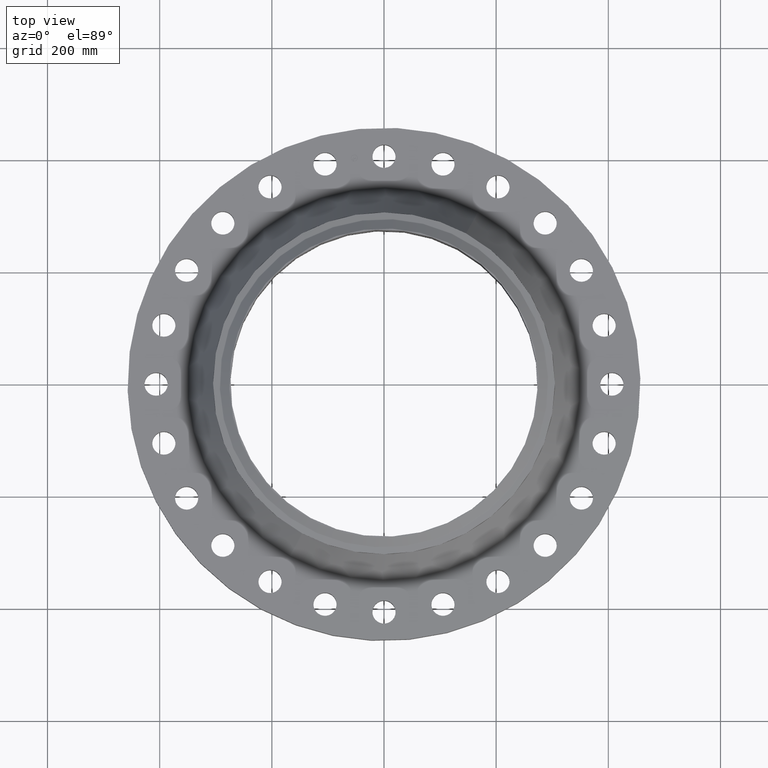
[diagram: clean part render]
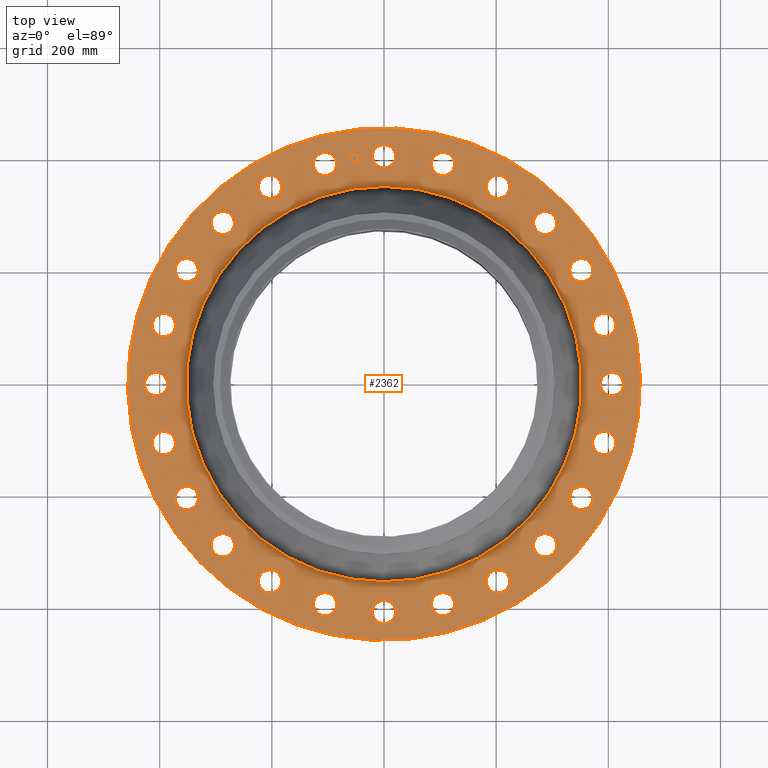
[diagram: same view with one face highlighted and labeled with its STEP entity id]
A machine part, top view. The second image highlights one B-rep face of the part: STEP entity #2362.
In plain terms, the highlighted planar face has unit normal (0, 0, -1).
Its self-contained STEP definition (entity closure, byte-faithful):
#65=AXIS2_PLACEMENT_3D('Circle Axis2P3D',#63,#64,$) ;
#90=AXIS2_PLACEMENT_3D('Circle Axis2P3D',#88,#89,$) ;
#130=AXIS2_PLACEMENT_3D('Circle Axis2P3D',#128,#129,$) ;
#154=AXIS2_PLACEMENT_3D('Circle Axis2P3D',#152,#153,$) ;
#171=AXIS2_PLACEMENT_3D('Circle Axis2P3D',#169,#170,$) ;
#206=AXIS2_PLACEMENT_3D('Circle Axis2P3D',#204,#205,$) ;
#1035=AXIS2_PLACEMENT_3D('Circle Axis2P3D',#1033,#1034,$) ;
#1047=AXIS2_PLACEMENT_3D('Circle Axis2P3D',#1045,#1046,$) ;
#1078=AXIS2_PLACEMENT_3D('Circle Axis2P3D',#1076,#1077,$) ;
#1090=AXIS2_PLACEMENT_3D('Circle Axis2P3D',#1088,#1089,$) ;
#1121=AXIS2_PLACEMENT_3D('Circle Axis2P3D',#1119,#1120,$) ;
#1133=AXIS2_PLACEMENT_3D('Circle Axis2P3D',#1131,#1132,$) ;
#1164=AXIS2_PLACEMENT_3D('Circle Axis2P3D',#1162,#1163,$) ;
#1176=AXIS2_PLACEMENT_3D('Circle Axis2P3D',#1174,#1175,$) ;
#1207=AXIS2_PLACEMENT_3D('Circle Axis2P3D',#1205,#1206,$) ;
#1219=AXIS2_PLACEMENT_3D('Circle Axis2P3D',#1217,#1218,$) ;
#1250=AXIS2_PLACEMENT_3D('Circle Axis2P3D',#1248,#1249,$) ;
#1262=AXIS2_PLACEMENT_3D('Circle Axis2P3D',#1260,#1261,$) ;
#1293=AXIS2_PLACEMENT_3D('Circle Axis2P3D',#1291,#1292,$) ;
#1305=AXIS2_PLACEMENT_3D('Circle Axis2P3D',#1303,#1304,$) ;
#1336=AXIS2_PLACEMENT_3D('Circle Axis2P3D',#1334,#1335,$) ;
#1348=AXIS2_PLACEMENT_3D('Circle Axis2P3D',#1346,#1347,$) ;
#1379=AXIS2_PLACEMENT_3D('Circle Axis2P3D',#1377,#1378,$) ;
#1391=AXIS2_PLACEMENT_3D('Circle Axis2P3D',#1389,#1390,$) ;
#1422=AXIS2_PLACEMENT_3D('Circle Axis2P3D',#1420,#1421,$) ;
#1434=AXIS2_PLACEMENT_3D('Circle Axis2P3D',#1432,#1433,$) ;
#1465=AXIS2_PLACEMENT_3D('Circle Axis2P3D',#1463,#1464,$) ;
#1477=AXIS2_PLACEMENT_3D('Circle Axis2P3D',#1475,#1476,$) ;
#1508=AXIS2_PLACEMENT_3D('Circle Axis2P3D',#1506,#1507,$) ;
#1520=AXIS2_PLACEMENT_3D('Circle Axis2P3D',#1518,#1519,$) ;
#1551=AXIS2_PLACEMENT_3D('Circle Axis2P3D',#1549,#1550,$) ;
#1563=AXIS2_PLACEMENT_3D('Circle Axis2P3D',#1561,#1562,$) ;
#1594=AXIS2_PLACEMENT_3D('Circle Axis2P3D',#1592,#1593,$) ;
#1606=AXIS2_PLACEMENT_3D('Circle Axis2P3D',#1604,#1605,$) ;
#1637=AXIS2_PLACEMENT_3D('Circle Axis2P3D',#1635,#1636,$) ;
#1649=AXIS2_PLACEMENT_3D('Circle Axis2P3D',#1647,#1648,$) ;
#1680=AXIS2_PLACEMENT_3D('Circle Axis2P3D',#1678,#1679,$) ;
#1692=AXIS2_PLACEMENT_3D('Circle Axis2P3D',#1690,#1691,$) ;
#1723=AXIS2_PLACEMENT_3D('Circle Axis2P3D',#1721,#1722,$) ;
#1735=AXIS2_PLACEMENT_3D('Circle Axis2P3D',#1733,#1734,$) ;
#1766=AXIS2_PLACEMENT_3D('Circle Axis2P3D',#1764,#1765,$) ;
#1778=AXIS2_PLACEMENT_3D('Circle Axis2P3D',#1776,#1777,$) ;
#1809=AXIS2_PLACEMENT_3D('Circle Axis2P3D',#1807,#1808,$) ;
#1821=AXIS2_PLACEMENT_3D('Circle Axis2P3D',#1819,#1820,$) ;
#1852=AXIS2_PLACEMENT_3D('Circle Axis2P3D',#1850,#1851,$) ;
#1864=AXIS2_PLACEMENT_3D('Circle Axis2P3D',#1862,#1863,$) ;
#1895=AXIS2_PLACEMENT_3D('Circle Axis2P3D',#1893,#1894,$) ;
#1907=AXIS2_PLACEMENT_3D('Circle Axis2P3D',#1905,#1906,$) ;
#1938=AXIS2_PLACEMENT_3D('Circle Axis2P3D',#1936,#1937,$) ;
#1950=AXIS2_PLACEMENT_3D('Circle Axis2P3D',#1948,#1949,$) ;
#1981=AXIS2_PLACEMENT_3D('Circle Axis2P3D',#1979,#1980,$) ;
#1993=AXIS2_PLACEMENT_3D('Circle Axis2P3D',#1991,#1992,$) ;
#2238=AXIS2_PLACEMENT_3D('Plane Axis2P3D',#2235,#2236,#2237) ;
#2346=AXIS2_PLACEMENT_3D('Circle Axis2P3D',#2344,#2345,$) ;
#2355=AXIS2_PLACEMENT_3D('Circle Axis2P3D',#2353,#2354,$) ;
#46=CARTESIAN_POINT('Vertex',(-0.715229787944,16.390731814,2.69000000001)) ;
#60=CARTESIAN_POINT('Vertex',(0.715229787944,15.6092681861,2.69000000001)) ;
#63=CARTESIAN_POINT('Axis2P3D Location',(0.,16.0000000001,2.69000000001)) ;
#88=CARTESIAN_POINT('Axis2P3D Location',(0.,16.0000000001,2.69000000001)) ;
#125=CARTESIAN_POINT('Vertex',(-8.62965969491,-15.7964861141,2.69000000001)) ;
#128=CARTESIAN_POINT('Axis2P3D Location',(0.,0.,2.69000000001)) ;
#132=CARTESIAN_POINT('Vertex',(8.62965969491,15.7964861141,2.69000000001)) ;
#152=CARTESIAN_POINT('Axis2P3D Location',(0.,0.,2.69000000001)) ;
#169=CARTESIAN_POINT('Axis2P3D Location',(0.,0.,2.69000000001)) ;
#173=CARTESIAN_POINT('Vertex',(6.65355365657,12.1792482741,2.69000000001)) ;
#175=CARTESIAN_POINT('Vertex',(-6.65355365657,-12.1792482741,2.69000000001)) ;
#204=CARTESIAN_POINT('Axis2P3D Location',(0.,0.,2.69000000001)) ;
#1023=CARTESIAN_POINT('Vertex',(-3.55137463273,-16.0173462617,2.69000000001)) ;
#1030=CARTESIAN_POINT('Vertex',(-4.73083481058,-14.8922801797,2.69000000001)) ;
#1033=CARTESIAN_POINT('Axis2P3D Location',(-4.14110472166,-15.4548132207,2.69000000001)) ;
#1045=CARTESIAN_POINT('Axis2P3D Location',(-4.14110472166,-15.4548132207,2.69000000001)) ;
#1066=CARTESIAN_POINT('Vertex',(7.57595874111,14.5524050315,2.69000000001)) ;
#1073=CARTESIAN_POINT('Vertex',(8.42404125895,13.1604078897,2.69000000001)) ;
#1076=CARTESIAN_POINT('Axis2P3D Location',(8.00000000003,13.8564064606,2.69000000001)) ;
#1088=CARTESIAN_POINT('Axis2P3D Location',(8.00000000003,13.8564064606,2.69000000001)) ;
#1109=CARTESIAN_POINT('Vertex',(-7.57595874111,-14.5524050315,2.69000000001)) ;
#1116=CARTESIAN_POINT('Vertex',(-8.42404125895,-13.1604078897,2.69000000001)) ;
#1119=CARTESIAN_POINT('Axis2P3D Location',(-8.00000000003,-13.8564064606,2.69000000001)) ;
#1131=CARTESIAN_POINT('Axis2P3D Location',(-8.00000000003,-13.8564064606,2.69000000001)) ;
#1152=CARTESIAN_POINT('Vertex',(11.0842537811,12.0957414475,2.69000000001)) ;
#1159=CARTESIAN_POINT('Vertex',(11.5431632169,10.5316755506,2.69000000001)) ;
#1162=CARTESIAN_POINT('Axis2P3D Location',(11.313708499,11.313708499,2.69000000001)) ;
#1174=CARTESIAN_POINT('Axis2P3D Location',(11.313708499,11.313708499,2.69000000001)) ;
#1195=CARTESIAN_POINT('Vertex',(-11.0842537811,-12.0957414475,2.69000000001)) ;
#1202=CARTESIAN_POINT('Vertex',(-11.5431632169,-10.5316755506,2.69000000001)) ;
#1205=CARTESIAN_POINT('Axis2P3D Location',(-11.313708499,-11.313708499,2.69000000001)) ;
#1217=CARTESIAN_POINT('Axis2P3D Location',(-11.313708499,-11.313708499,2.69000000001)) ;
#1238=CARTESIAN_POINT('Vertex',(13.8371752436,8.81477307292,2.69000000001)) ;
#1245=CARTESIAN_POINT('Vertex',(13.8756376776,7.18522692715,2.69000000001)) ;
#1248=CARTESIAN_POINT('Axis2P3D Location',(13.8564064606,8.00000000003,2.69000000001)) ;
#1260=CARTESIAN_POINT('Axis2P3D Location',(13.8564064606,8.00000000003,2.69000000001)) ;
#1281=CARTESIAN_POINT('Vertex',(-13.8371752436,-8.81477307292,2.69000000001)) ;
#1288=CARTESIAN_POINT('Vertex',(-13.8756376776,-7.18522692715,2.69000000001)) ;
#1291=CARTESIAN_POINT('Axis2P3D Location',(-13.8564064606,-8.00000000003,2.69000000001)) ;
#1303=CARTESIAN_POINT('Axis2P3D Location',(-13.8564064606,-8.00000000003,2.69000000001)) ;
#1324=CARTESIAN_POINT('Vertex',(15.6471160802,4.93309248054,2.69000000001)) ;
#1331=CARTESIAN_POINT('Vertex',(15.2625103612,3.34911696277,2.69000000001)) ;
#1334=CARTESIAN_POINT('Axis2P3D Location',(15.4548132207,4.14110472166,2.69000000001)) ;
#1346=CARTESIAN_POINT('Axis2P3D Location',(15.4548132207,4.14110472166,2.69000000001)) ;
#1367=CARTESIAN_POINT('Vertex',(-15.6471160802,-4.93309248054,2.69000000001)) ;
#1374=CARTESIAN_POINT('Vertex',(-15.2625103612,-3.34911696277,2.69000000001)) ;
#1377=CARTESIAN_POINT('Axis2P3D Location',(-15.4548132207,-4.14110472166,2.69000000001)) ;
#1389=CARTESIAN_POINT('Axis2P3D Location',(-15.4548132207,-4.14110472166,2.69000000001)) ;
#1410=CARTESIAN_POINT('Vertex',(16.390731814,0.715229787944,2.69000000001)) ;
#1417=CARTESIAN_POINT('Vertex',(15.6092681861,-0.715229787944,2.69000000001)) ;
#1420=CARTESIAN_POINT('Axis2P3D Location',(16.0000000001,9.79717439322E-016,2.69000000001)) ;
#1432=CARTESIAN_POINT('Axis2P3D Location',(16.0000000001,9.79717439322E-016,2.69000000001)) ;
#1453=CARTESIAN_POINT('Vertex',(-16.390731814,-0.715229787944,2.69000000001)) ;
#1460=CARTESIAN_POINT('Vertex',(-15.6092681861,0.715229787944,2.69000000001)) ;
#1463=CARTESIAN_POINT('Axis2P3D Location',(-16.0000000001,-7.01222441556E-016,2.69000000001)) ;
#1475=CARTESIAN_POINT('Axis2P3D Location',(-16.0000000001,-7.01222441556E-016,2.69000000001)) ;
#1496=CARTESIAN_POINT('Vertex',(16.0173462617,-3.55137463273,2.69000000001)) ;
#1503=CARTESIAN_POINT('Vertex',(14.8922801797,-4.73083481058,2.69000000001)) ;
#1506=CARTESIAN_POINT('Axis2P3D Location',(15.4548132207,-4.14110472166,2.69000000001)) ;
#1518=CARTESIAN_POINT('Axis2P3D Location',(15.4548132207,-4.14110472166,2.69000000001)) ;
#1539=CARTESIAN_POINT('Vertex',(-16.0173462617,3.55137463273,2.69000000001)) ;
#1546=CARTESIAN_POINT('Vertex',(-14.8922801797,4.73083481058,2.69000000001)) ;
#1549=CARTESIAN_POINT('Axis2P3D Location',(-15.4548132207,4.14110472166,2.69000000001)) ;
#1561=CARTESIAN_POINT('Axis2P3D Location',(-15.4548132207,4.14110472166,2.69000000001)) ;
#1582=CARTESIAN_POINT('Vertex',(14.5524050315,-7.57595874111,2.69000000001)) ;
#1589=CARTESIAN_POINT('Vertex',(13.1604078897,-8.42404125895,2.69000000001)) ;
#1592=CARTESIAN_POINT('Axis2P3D Location',(13.8564064606,-8.00000000003,2.69000000001)) ;
#1604=CARTESIAN_POINT('Axis2P3D Location',(13.8564064606,-8.00000000003,2.69000000001)) ;
#1625=CARTESIAN_POINT('Vertex',(-14.5524050315,7.57595874111,2.69000000001)) ;
#1632=CARTESIAN_POINT('Vertex',(-13.1604078897,8.42404125895,2.69000000001)) ;
#1635=CARTESIAN_POINT('Axis2P3D Location',(-13.8564064606,8.00000000003,2.69000000001)) ;
#1647=CARTESIAN_POINT('Axis2P3D Location',(-13.8564064606,8.00000000003,2.69000000001)) ;
#1668=CARTESIAN_POINT('Vertex',(12.0957414475,-11.0842537811,2.69000000001)) ;
#1675=CARTESIAN_POINT('Vertex',(10.5316755506,-11.5431632169,2.69000000001)) ;
#1678=CARTESIAN_POINT('Axis2P3D Location',(11.313708499,-11.313708499,2.69000000001)) ;
#1690=CARTESIAN_POINT('Axis2P3D Location',(11.313708499,-11.313708499,2.69000000001)) ;
#1711=CARTESIAN_POINT('Vertex',(-12.0957414475,11.0842537811,2.69000000001)) ;
#1718=CARTESIAN_POINT('Vertex',(-10.5316755506,11.5431632169,2.69000000001)) ;
#1721=CARTESIAN_POINT('Axis2P3D Location',(-11.313708499,11.313708499,2.69000000001)) ;
#1733=CARTESIAN_POINT('Axis2P3D Location',(-11.313708499,11.313708499,2.69000000001)) ;
#1754=CARTESIAN_POINT('Vertex',(8.81477307292,-13.8371752436,2.69000000001)) ;
#1761=CARTESIAN_POINT('Vertex',(7.18522692715,-13.8756376776,2.69000000001)) ;
#1764=CARTESIAN_POINT('Axis2P3D Location',(8.00000000003,-13.8564064606,2.69000000001)) ;
#1776=CARTESIAN_POINT('Axis2P3D Location',(8.00000000003,-13.8564064606,2.69000000001)) ;
#1797=CARTESIAN_POINT('Vertex',(-8.81477307292,13.8371752436,2.69000000001)) ;
#1804=CARTESIAN_POINT('Vertex',(-7.18522692715,13.8756376776,2.69000000001)) ;
#1807=CARTESIAN_POINT('Axis2P3D Location',(-8.00000000003,13.8564064606,2.69000000001)) ;
#1819=CARTESIAN_POINT('Axis2P3D Location',(-8.00000000003,13.8564064606,2.69000000001)) ;
#1840=CARTESIAN_POINT('Vertex',(4.93309248054,-15.6471160802,2.69000000001)) ;
#1847=CARTESIAN_POINT('Vertex',(3.34911696277,-15.2625103612,2.69000000001)) ;
#1850=CARTESIAN_POINT('Axis2P3D Location',(4.14110472166,-15.4548132207,2.69000000001)) ;
#1862=CARTESIAN_POINT('Axis2P3D Location',(4.14110472166,-15.4548132207,2.69000000001)) ;
#1883=CARTESIAN_POINT('Vertex',(-4.93309248054,15.6471160802,2.69000000001)) ;
#1890=CARTESIAN_POINT('Vertex',(-3.34911696277,15.2625103612,2.69000000001)) ;
#1893=CARTESIAN_POINT('Axis2P3D Location',(-4.14110472166,15.4548132207,2.69000000001)) ;
#1905=CARTESIAN_POINT('Axis2P3D Location',(-4.14110472166,15.4548132207,2.69000000001)) ;
#1926=CARTESIAN_POINT('Vertex',(0.715229787944,-16.390731814,2.69000000001)) ;
#1933=CARTESIAN_POINT('Vertex',(-0.715229787944,-15.6092681861,2.69000000001)) ;
#1936=CARTESIAN_POINT('Axis2P3D Location',(1.95943487864E-015,-16.0000000001,2.69000000001)) ;
#1948=CARTESIAN_POINT('Axis2P3D Location',(1.95943487864E-015,-16.0000000001,2.69000000001)) ;
#1969=CARTESIAN_POINT('Vertex',(3.55137463273,16.0173462617,2.69000000001)) ;
#1976=CARTESIAN_POINT('Vertex',(4.73083481058,14.8922801797,2.69000000001)) ;
#1979=CARTESIAN_POINT('Axis2P3D Location',(4.14110472166,15.4548132207,2.69000000001)) ;
#1991=CARTESIAN_POINT('Axis2P3D Location',(4.14110472166,15.4548132207,2.69000000001)) ;
#2235=CARTESIAN_POINT('Axis2P3D Location',(0.,18.0000000001,2.69000000001)) ;
#2344=CARTESIAN_POINT('Axis2P3D Location',(-2.08841907553,15.863117782,2.69000000001)) ;
#2348=CARTESIAN_POINT('Vertex',(-2.33380167872,15.8308125495,2.69000000001)) ;
#2350=CARTESIAN_POINT('Vertex',(-1.84303647234,15.8954230146,2.69000000001)) ;
#2353=CARTESIAN_POINT('Axis2P3D Location',(-2.08841907553,15.863117782,2.69000000001)) ;
#64=DIRECTION('Axis2P3D Direction',(0.,-0.,-0.0393700787402)) ;
#89=DIRECTION('Axis2P3D Direction',(0.,-0.,-0.0393700787402)) ;
#129=DIRECTION('Axis2P3D Direction',(0.,0.,-0.0393700787402)) ;
#153=DIRECTION('Axis2P3D Direction',(0.,0.,-0.0393700787402)) ;
#170=DIRECTION('Axis2P3D Direction',(0.,0.,-0.0393700787402)) ;
#205=DIRECTION('Axis2P3D Direction',(0.,0.,-0.0393700787402)) ;
#1034=DIRECTION('Axis2P3D Direction',(0.,0.,-0.0393700787402)) ;
#1046=DIRECTION('Axis2P3D Direction',(0.,0.,-0.0393700787402)) ;
#1077=DIRECTION('Axis2P3D Direction',(0.,-0.,-0.0393700787402)) ;
#1089=DIRECTION('Axis2P3D Direction',(0.,-0.,-0.0393700787402)) ;
#1120=DIRECTION('Axis2P3D Direction',(0.,0.,-0.0393700787402)) ;
#1132=DIRECTION('Axis2P3D Direction',(0.,0.,-0.0393700787402)) ;
#1163=DIRECTION('Axis2P3D Direction',(0.,-0.,-0.0393700787402)) ;
#1175=DIRECTION('Axis2P3D Direction',(0.,-0.,-0.0393700787402)) ;
#1206=DIRECTION('Axis2P3D Direction',(0.,0.,-0.0393700787402)) ;
#1218=DIRECTION('Axis2P3D Direction',(0.,0.,-0.0393700787402)) ;
#1249=DIRECTION('Axis2P3D Direction',(0.,-0.,-0.0393700787402)) ;
#1261=DIRECTION('Axis2P3D Direction',(0.,-0.,-0.0393700787402)) ;
#1292=DIRECTION('Axis2P3D Direction',(0.,0.,-0.0393700787402)) ;
#1304=DIRECTION('Axis2P3D Direction',(0.,0.,-0.0393700787402)) ;
#1335=DIRECTION('Axis2P3D Direction',(0.,-0.,-0.0393700787402)) ;
#1347=DIRECTION('Axis2P3D Direction',(0.,-0.,-0.0393700787402)) ;
#1378=DIRECTION('Axis2P3D Direction',(0.,0.,-0.0393700787402)) ;
#1390=DIRECTION('Axis2P3D Direction',(0.,0.,-0.0393700787402)) ;
#1421=DIRECTION('Axis2P3D Direction',(0.,-0.,-0.0393700787402)) ;
#1433=DIRECTION('Axis2P3D Direction',(0.,-0.,-0.0393700787402)) ;
#1464=DIRECTION('Axis2P3D Direction',(0.,0.,-0.0393700787402)) ;
#1476=DIRECTION('Axis2P3D Direction',(0.,0.,-0.0393700787402)) ;
#1507=DIRECTION('Axis2P3D Direction',(-0.,0.,-0.0393700787402)) ;
#1519=DIRECTION('Axis2P3D Direction',(-0.,0.,-0.0393700787402)) ;
#1550=DIRECTION('Axis2P3D Direction',(0.,0.,-0.0393700787402)) ;
#1562=DIRECTION('Axis2P3D Direction',(0.,0.,-0.0393700787402)) ;
#1593=DIRECTION('Axis2P3D Direction',(-0.,0.,-0.0393700787402)) ;
#1605=DIRECTION('Axis2P3D Direction',(-0.,0.,-0.0393700787402)) ;
#1636=DIRECTION('Axis2P3D Direction',(0.,0.,-0.0393700787402)) ;
#1648=DIRECTION('Axis2P3D Direction',(0.,0.,-0.0393700787402)) ;
#1679=DIRECTION('Axis2P3D Direction',(-0.,0.,-0.0393700787402)) ;
#1691=DIRECTION('Axis2P3D Direction',(-0.,0.,-0.0393700787402)) ;
#1722=DIRECTION('Axis2P3D Direction',(0.,0.,-0.0393700787402)) ;
#1734=DIRECTION('Axis2P3D Direction',(0.,0.,-0.0393700787402)) ;
#1765=DIRECTION('Axis2P3D Direction',(-0.,0.,-0.0393700787402)) ;
#1777=DIRECTION('Axis2P3D Direction',(-0.,0.,-0.0393700787402)) ;
#1808=DIRECTION('Axis2P3D Direction',(0.,0.,-0.0393700787402)) ;
#1820=DIRECTION('Axis2P3D Direction',(0.,0.,-0.0393700787402)) ;
#1851=DIRECTION('Axis2P3D Direction',(-0.,0.,-0.0393700787402)) ;
#1863=DIRECTION('Axis2P3D Direction',(-0.,0.,-0.0393700787402)) ;
#1894=DIRECTION('Axis2P3D Direction',(0.,0.,-0.0393700787402)) ;
#1906=DIRECTION('Axis2P3D Direction',(0.,0.,-0.0393700787402)) ;
#1937=DIRECTION('Axis2P3D Direction',(-0.,0.,-0.0393700787402)) ;
#1949=DIRECTION('Axis2P3D Direction',(-0.,0.,-0.0393700787402)) ;
#1980=DIRECTION('Axis2P3D Direction',(0.,-0.,-0.0393700787402)) ;
#1992=DIRECTION('Axis2P3D Direction',(0.,-0.,-0.0393700787402)) ;
#2236=DIRECTION('Axis2P3D Direction',(0.,0.,-0.0393700787402)) ;
#2237=DIRECTION('Axis2P3D XDirection',(0.0393700787402,0.,0.)) ;
#2345=DIRECTION('Axis2P3D Direction',(0.,0.,-0.0393700787402)) ;
#2354=DIRECTION('Axis2P3D Direction',(0.,0.,-0.0393700787402)) ;
#2241=ORIENTED_EDGE('',*,*,#156,.F.) ;
#2242=ORIENTED_EDGE('',*,*,#134,.F.) ;
#2245=ORIENTED_EDGE('',*,*,#67,.T.) ;
#2246=ORIENTED_EDGE('',*,*,#92,.T.) ;
#2249=ORIENTED_EDGE('',*,*,#208,.T.) ;
#2250=ORIENTED_EDGE('',*,*,#177,.T.) ;
#2253=ORIENTED_EDGE('',*,*,#1995,.T.) ;
#2254=ORIENTED_EDGE('',*,*,#1983,.T.) ;
#2257=ORIENTED_EDGE('',*,*,#1092,.T.) ;
#2258=ORIENTED_EDGE('',*,*,#1080,.T.) ;
#2261=ORIENTED_EDGE('',*,*,#1178,.T.) ;
#2262=ORIENTED_EDGE('',*,*,#1166,.T.) ;
#2265=ORIENTED_EDGE('',*,*,#1264,.T.) ;
#2266=ORIENTED_EDGE('',*,*,#1252,.T.) ;
#2269=ORIENTED_EDGE('',*,*,#1350,.T.) ;
#2270=ORIENTED_EDGE('',*,*,#1338,.T.) ;
#2273=ORIENTED_EDGE('',*,*,#1436,.T.) ;
#2274=ORIENTED_EDGE('',*,*,#1424,.T.) ;
#2277=ORIENTED_EDGE('',*,*,#1522,.T.) ;
#2278=ORIENTED_EDGE('',*,*,#1510,.T.) ;
#2281=ORIENTED_EDGE('',*,*,#1608,.T.) ;
#2282=ORIENTED_EDGE('',*,*,#1596,.T.) ;
#2285=ORIENTED_EDGE('',*,*,#1694,.T.) ;
#2286=ORIENTED_EDGE('',*,*,#1682,.T.) ;
#2289=ORIENTED_EDGE('',*,*,#1780,.T.) ;
#2290=ORIENTED_EDGE('',*,*,#1768,.T.) ;
#2293=ORIENTED_EDGE('',*,*,#1866,.T.) ;
#2294=ORIENTED_EDGE('',*,*,#1854,.T.) ;
#2297=ORIENTED_EDGE('',*,*,#1952,.T.) ;
#2298=ORIENTED_EDGE('',*,*,#1940,.T.) ;
#2301=ORIENTED_EDGE('',*,*,#1049,.T.) ;
#2302=ORIENTED_EDGE('',*,*,#1037,.T.) ;
#2305=ORIENTED_EDGE('',*,*,#1135,.T.) ;
#2306=ORIENTED_EDGE('',*,*,#1123,.T.) ;
#2309=ORIENTED_EDGE('',*,*,#1221,.T.) ;
#2310=ORIENTED_EDGE('',*,*,#1209,.T.) ;
#2313=ORIENTED_EDGE('',*,*,#1307,.T.) ;
#2314=ORIENTED_EDGE('',*,*,#1295,.T.) ;
#2317=ORIENTED_EDGE('',*,*,#1393,.T.) ;
#2318=ORIENTED_EDGE('',*,*,#1381,.T.) ;
#2321=ORIENTED_EDGE('',*,*,#1479,.T.) ;
#2322=ORIENTED_EDGE('',*,*,#1467,.T.) ;
#2325=ORIENTED_EDGE('',*,*,#1565,.T.) ;
#2326=ORIENTED_EDGE('',*,*,#1553,.T.) ;
#2329=ORIENTED_EDGE('',*,*,#1651,.T.) ;
#2330=ORIENTED_EDGE('',*,*,#1639,.T.) ;
#2333=ORIENTED_EDGE('',*,*,#1737,.T.) ;
#2334=ORIENTED_EDGE('',*,*,#1725,.T.) ;
#2337=ORIENTED_EDGE('',*,*,#1823,.T.) ;
#2338=ORIENTED_EDGE('',*,*,#1811,.T.) ;
#2341=ORIENTED_EDGE('',*,*,#1909,.T.) ;
#2342=ORIENTED_EDGE('',*,*,#1897,.T.) ;
#2359=ORIENTED_EDGE('',*,*,#2352,.T.) ;
#2360=ORIENTED_EDGE('',*,*,#2357,.T.) ;
#2247=FACE_BOUND('',#2244,.T.) ;
#2251=FACE_BOUND('',#2248,.T.) ;
#2255=FACE_BOUND('',#2252,.T.) ;
#2259=FACE_BOUND('',#2256,.T.) ;
#2263=FACE_BOUND('',#2260,.T.) ;
#2267=FACE_BOUND('',#2264,.T.) ;
#2271=FACE_BOUND('',#2268,.T.) ;
#2275=FACE_BOUND('',#2272,.T.) ;
#2279=FACE_BOUND('',#2276,.T.) ;
#2283=FACE_BOUND('',#2280,.T.) ;
#2287=FACE_BOUND('',#2284,.T.) ;
#2291=FACE_BOUND('',#2288,.T.) ;
#2295=FACE_BOUND('',#2292,.T.) ;
#2299=FACE_BOUND('',#2296,.T.) ;
#2303=FACE_BOUND('',#2300,.T.) ;
#2307=FACE_BOUND('',#2304,.T.) ;
#2311=FACE_BOUND('',#2308,.T.) ;
#2315=FACE_BOUND('',#2312,.T.) ;
#2319=FACE_BOUND('',#2316,.T.) ;
#2323=FACE_BOUND('',#2320,.T.) ;
#2327=FACE_BOUND('',#2324,.T.) ;
#2331=FACE_BOUND('',#2328,.T.) ;
#2335=FACE_BOUND('',#2332,.T.) ;
#2339=FACE_BOUND('',#2336,.T.) ;
#2343=FACE_BOUND('',#2340,.T.) ;
#2361=FACE_BOUND('',#2358,.T.) ;
#2362=ADVANCED_FACE('PartBody',(#2243,#2247,#2251,#2255,#2259,#2263,#2267,#2271,#2275,#2279,#2283,#2287,#2291,#2295,#2299,#2303,#2307,#2311,#2315,#2319,#2323,#2327,#2331,#2335,#2339,#2343,#2361),#2239,.F.) ;
#66=CIRCLE('generated circle',#65,0.815000000003) ;
#91=CIRCLE('generated circle',#90,0.815000000003) ;
#131=CIRCLE('generated circle',#130,18.0000000001) ;
#155=CIRCLE('generated circle',#154,18.0000000001) ;
#172=CIRCLE('generated circle',#171,13.8781794477) ;
#207=CIRCLE('generated circle',#206,13.8781794477) ;
#1036=CIRCLE('generated circle',#1035,0.815000000003) ;
#1048=CIRCLE('generated circle',#1047,0.815000000003) ;
#1079=CIRCLE('generated circle',#1078,0.815000000003) ;
#1091=CIRCLE('generated circle',#1090,0.815000000003) ;
#1122=CIRCLE('generated circle',#1121,0.815000000003) ;
#1134=CIRCLE('generated circle',#1133,0.815000000003) ;
#1165=CIRCLE('generated circle',#1164,0.815000000003) ;
#1177=CIRCLE('generated circle',#1176,0.815000000003) ;
#1208=CIRCLE('generated circle',#1207,0.815000000003) ;
#1220=CIRCLE('generated circle',#1219,0.815000000003) ;
#1251=CIRCLE('generated circle',#1250,0.815000000003) ;
#1263=CIRCLE('generated circle',#1262,0.815000000003) ;
#1294=CIRCLE('generated circle',#1293,0.815000000003) ;
#1306=CIRCLE('generated circle',#1305,0.815000000003) ;
#1337=CIRCLE('generated circle',#1336,0.815000000003) ;
#1349=CIRCLE('generated circle',#1348,0.815000000003) ;
#1380=CIRCLE('generated circle',#1379,0.815000000003) ;
#1392=CIRCLE('generated circle',#1391,0.815000000003) ;
#1423=CIRCLE('generated circle',#1422,0.815000000003) ;
#1435=CIRCLE('generated circle',#1434,0.815000000003) ;
#1466=CIRCLE('generated circle',#1465,0.815000000003) ;
#1478=CIRCLE('generated circle',#1477,0.815000000003) ;
#1509=CIRCLE('generated circle',#1508,0.815000000003) ;
#1521=CIRCLE('generated circle',#1520,0.815000000003) ;
#1552=CIRCLE('generated circle',#1551,0.815000000003) ;
#1564=CIRCLE('generated circle',#1563,0.815000000003) ;
#1595=CIRCLE('generated circle',#1594,0.815000000003) ;
#1607=CIRCLE('generated circle',#1606,0.815000000003) ;
#1638=CIRCLE('generated circle',#1637,0.815000000003) ;
#1650=CIRCLE('generated circle',#1649,0.815000000003) ;
#1681=CIRCLE('generated circle',#1680,0.815000000003) ;
#1693=CIRCLE('generated circle',#1692,0.815000000003) ;
#1724=CIRCLE('generated circle',#1723,0.815000000003) ;
#1736=CIRCLE('generated circle',#1735,0.815000000003) ;
#1767=CIRCLE('generated circle',#1766,0.815000000003) ;
#1779=CIRCLE('generated circle',#1778,0.815000000003) ;
#1810=CIRCLE('generated circle',#1809,0.815000000003) ;
#1822=CIRCLE('generated circle',#1821,0.815000000003) ;
#1853=CIRCLE('generated circle',#1852,0.815000000003) ;
#1865=CIRCLE('generated circle',#1864,0.815000000003) ;
#1896=CIRCLE('generated circle',#1895,0.815000000003) ;
#1908=CIRCLE('generated circle',#1907,0.815000000003) ;
#1939=CIRCLE('generated circle',#1938,0.815000000003) ;
#1951=CIRCLE('generated circle',#1950,0.815000000003) ;
#1982=CIRCLE('generated circle',#1981,0.815000000003) ;
#1994=CIRCLE('generated circle',#1993,0.815000000003) ;
#2347=CIRCLE('generated circle',#2346,0.247500000001) ;
#2356=CIRCLE('generated circle',#2355,0.247500000001) ;
#67=EDGE_CURVE('',#47,#61,#66,.T.) ;
#92=EDGE_CURVE('',#61,#47,#91,.T.) ;
#134=EDGE_CURVE('',#126,#133,#131,.T.) ;
#156=EDGE_CURVE('',#133,#126,#155,.T.) ;
#177=EDGE_CURVE('',#174,#176,#172,.T.) ;
#208=EDGE_CURVE('',#176,#174,#207,.T.) ;
#1037=EDGE_CURVE('',#1024,#1031,#1036,.T.) ;
#1049=EDGE_CURVE('',#1031,#1024,#1048,.T.) ;
#1080=EDGE_CURVE('',#1067,#1074,#1079,.T.) ;
#1092=EDGE_CURVE('',#1074,#1067,#1091,.T.) ;
#1123=EDGE_CURVE('',#1110,#1117,#1122,.T.) ;
#1135=EDGE_CURVE('',#1117,#1110,#1134,.T.) ;
#1166=EDGE_CURVE('',#1153,#1160,#1165,.T.) ;
#1178=EDGE_CURVE('',#1160,#1153,#1177,.T.) ;
#1209=EDGE_CURVE('',#1196,#1203,#1208,.T.) ;
#1221=EDGE_CURVE('',#1203,#1196,#1220,.T.) ;
#1252=EDGE_CURVE('',#1239,#1246,#1251,.T.) ;
#1264=EDGE_CURVE('',#1246,#1239,#1263,.T.) ;
#1295=EDGE_CURVE('',#1282,#1289,#1294,.T.) ;
#1307=EDGE_CURVE('',#1289,#1282,#1306,.T.) ;
#1338=EDGE_CURVE('',#1325,#1332,#1337,.T.) ;
#1350=EDGE_CURVE('',#1332,#1325,#1349,.T.) ;
#1381=EDGE_CURVE('',#1368,#1375,#1380,.T.) ;
#1393=EDGE_CURVE('',#1375,#1368,#1392,.T.) ;
#1424=EDGE_CURVE('',#1411,#1418,#1423,.T.) ;
#1436=EDGE_CURVE('',#1418,#1411,#1435,.T.) ;
#1467=EDGE_CURVE('',#1454,#1461,#1466,.T.) ;
#1479=EDGE_CURVE('',#1461,#1454,#1478,.T.) ;
#1510=EDGE_CURVE('',#1497,#1504,#1509,.T.) ;
#1522=EDGE_CURVE('',#1504,#1497,#1521,.T.) ;
#1553=EDGE_CURVE('',#1540,#1547,#1552,.T.) ;
#1565=EDGE_CURVE('',#1547,#1540,#1564,.T.) ;
#1596=EDGE_CURVE('',#1583,#1590,#1595,.T.) ;
#1608=EDGE_CURVE('',#1590,#1583,#1607,.T.) ;
#1639=EDGE_CURVE('',#1626,#1633,#1638,.T.) ;
#1651=EDGE_CURVE('',#1633,#1626,#1650,.T.) ;
#1682=EDGE_CURVE('',#1669,#1676,#1681,.T.) ;
#1694=EDGE_CURVE('',#1676,#1669,#1693,.T.) ;
#1725=EDGE_CURVE('',#1712,#1719,#1724,.T.) ;
#1737=EDGE_CURVE('',#1719,#1712,#1736,.T.) ;
#1768=EDGE_CURVE('',#1755,#1762,#1767,.T.) ;
#1780=EDGE_CURVE('',#1762,#1755,#1779,.T.) ;
#1811=EDGE_CURVE('',#1798,#1805,#1810,.T.) ;
#1823=EDGE_CURVE('',#1805,#1798,#1822,.T.) ;
#1854=EDGE_CURVE('',#1841,#1848,#1853,.T.) ;
#1866=EDGE_CURVE('',#1848,#1841,#1865,.T.) ;
#1897=EDGE_CURVE('',#1884,#1891,#1896,.T.) ;
#1909=EDGE_CURVE('',#1891,#1884,#1908,.T.) ;
#1940=EDGE_CURVE('',#1927,#1934,#1939,.T.) ;
#1952=EDGE_CURVE('',#1934,#1927,#1951,.T.) ;
#1983=EDGE_CURVE('',#1970,#1977,#1982,.T.) ;
#1995=EDGE_CURVE('',#1977,#1970,#1994,.T.) ;
#2352=EDGE_CURVE('',#2349,#2351,#2347,.T.) ;
#2357=EDGE_CURVE('',#2351,#2349,#2356,.T.) ;
#2240=EDGE_LOOP('',(#2241,#2242)) ;
#2244=EDGE_LOOP('',(#2245,#2246)) ;
#2248=EDGE_LOOP('',(#2249,#2250)) ;
#2252=EDGE_LOOP('',(#2253,#2254)) ;
#2256=EDGE_LOOP('',(#2257,#2258)) ;
#2260=EDGE_LOOP('',(#2261,#2262)) ;
#2264=EDGE_LOOP('',(#2265,#2266)) ;
#2268=EDGE_LOOP('',(#2269,#2270)) ;
#2272=EDGE_LOOP('',(#2273,#2274)) ;
#2276=EDGE_LOOP('',(#2277,#2278)) ;
#2280=EDGE_LOOP('',(#2281,#2282)) ;
#2284=EDGE_LOOP('',(#2285,#2286)) ;
#2288=EDGE_LOOP('',(#2289,#2290)) ;
#2292=EDGE_LOOP('',(#2293,#2294)) ;
#2296=EDGE_LOOP('',(#2297,#2298)) ;
#2300=EDGE_LOOP('',(#2301,#2302)) ;
#2304=EDGE_LOOP('',(#2305,#2306)) ;
#2308=EDGE_LOOP('',(#2309,#2310)) ;
#2312=EDGE_LOOP('',(#2313,#2314)) ;
#2316=EDGE_LOOP('',(#2317,#2318)) ;
#2320=EDGE_LOOP('',(#2321,#2322)) ;
#2324=EDGE_LOOP('',(#2325,#2326)) ;
#2328=EDGE_LOOP('',(#2329,#2330)) ;
#2332=EDGE_LOOP('',(#2333,#2334)) ;
#2336=EDGE_LOOP('',(#2337,#2338)) ;
#2340=EDGE_LOOP('',(#2341,#2342)) ;
#2358=EDGE_LOOP('',(#2359,#2360)) ;
#2243=FACE_OUTER_BOUND('',#2240,.T.) ;
#2239=PLANE('',#2238) ;
#47=VERTEX_POINT('',#46) ;
#61=VERTEX_POINT('',#60) ;
#126=VERTEX_POINT('',#125) ;
#133=VERTEX_POINT('',#132) ;
#174=VERTEX_POINT('',#173) ;
#176=VERTEX_POINT('',#175) ;
#1024=VERTEX_POINT('',#1023) ;
#1031=VERTEX_POINT('',#1030) ;
#1067=VERTEX_POINT('',#1066) ;
#1074=VERTEX_POINT('',#1073) ;
#1110=VERTEX_POINT('',#1109) ;
#1117=VERTEX_POINT('',#1116) ;
#1153=VERTEX_POINT('',#1152) ;
#1160=VERTEX_POINT('',#1159) ;
#1196=VERTEX_POINT('',#1195) ;
#1203=VERTEX_POINT('',#1202) ;
#1239=VERTEX_POINT('',#1238) ;
#1246=VERTEX_POINT('',#1245) ;
#1282=VERTEX_POINT('',#1281) ;
#1289=VERTEX_POINT('',#1288) ;
#1325=VERTEX_POINT('',#1324) ;
#1332=VERTEX_POINT('',#1331) ;
#1368=VERTEX_POINT('',#1367) ;
#1375=VERTEX_POINT('',#1374) ;
#1411=VERTEX_POINT('',#1410) ;
#1418=VERTEX_POINT('',#1417) ;
#1454=VERTEX_POINT('',#1453) ;
#1461=VERTEX_POINT('',#1460) ;
#1497=VERTEX_POINT('',#1496) ;
#1504=VERTEX_POINT('',#1503) ;
#1540=VERTEX_POINT('',#1539) ;
#1547=VERTEX_POINT('',#1546) ;
#1583=VERTEX_POINT('',#1582) ;
#1590=VERTEX_POINT('',#1589) ;
#1626=VERTEX_POINT('',#1625) ;
#1633=VERTEX_POINT('',#1632) ;
#1669=VERTEX_POINT('',#1668) ;
#1676=VERTEX_POINT('',#1675) ;
#1712=VERTEX_POINT('',#1711) ;
#1719=VERTEX_POINT('',#1718) ;
#1755=VERTEX_POINT('',#1754) ;
#1762=VERTEX_POINT('',#1761) ;
#1798=VERTEX_POINT('',#1797) ;
#1805=VERTEX_POINT('',#1804) ;
#1841=VERTEX_POINT('',#1840) ;
#1848=VERTEX_POINT('',#1847) ;
#1884=VERTEX_POINT('',#1883) ;
#1891=VERTEX_POINT('',#1890) ;
#1927=VERTEX_POINT('',#1926) ;
#1934=VERTEX_POINT('',#1933) ;
#1970=VERTEX_POINT('',#1969) ;
#1977=VERTEX_POINT('',#1976) ;
#2349=VERTEX_POINT('',#2348) ;
#2351=VERTEX_POINT('',#2350) ;